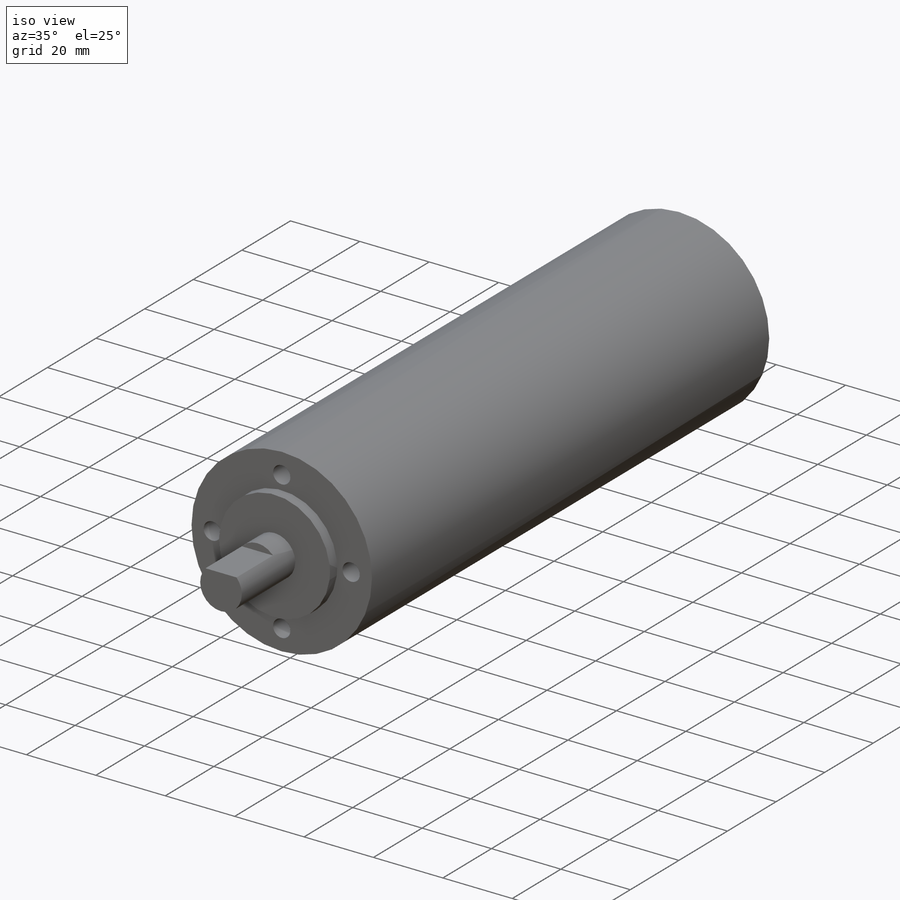
[diagram: iso view]
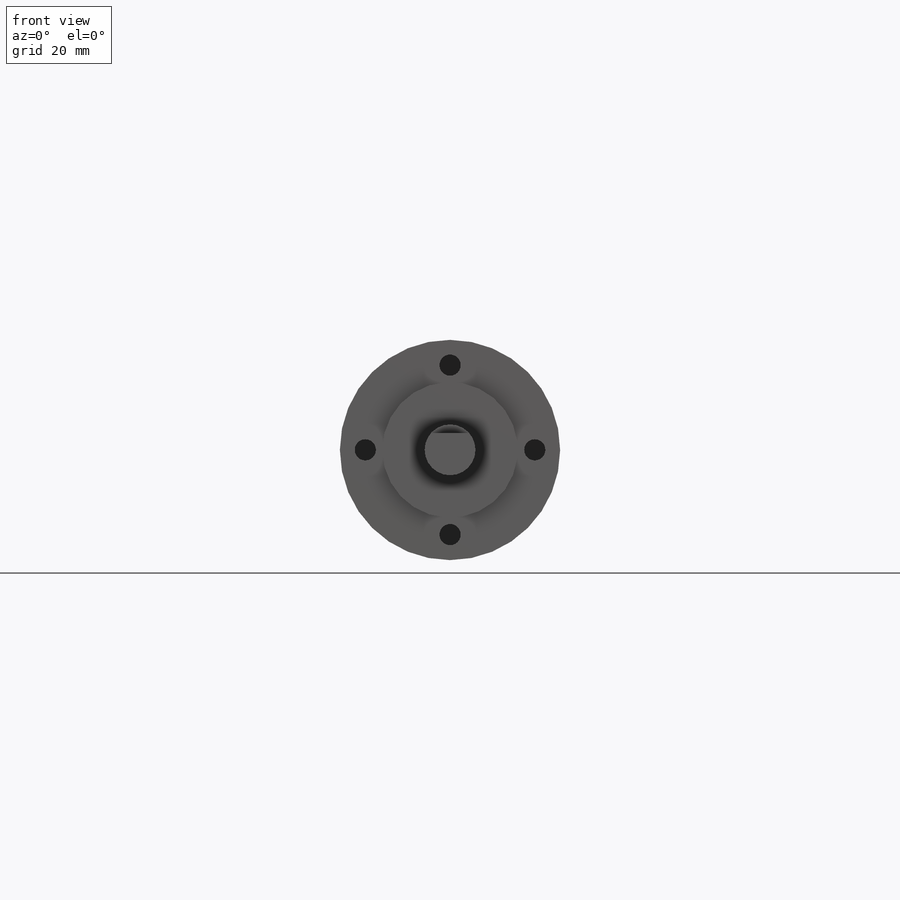
[diagram: front view]
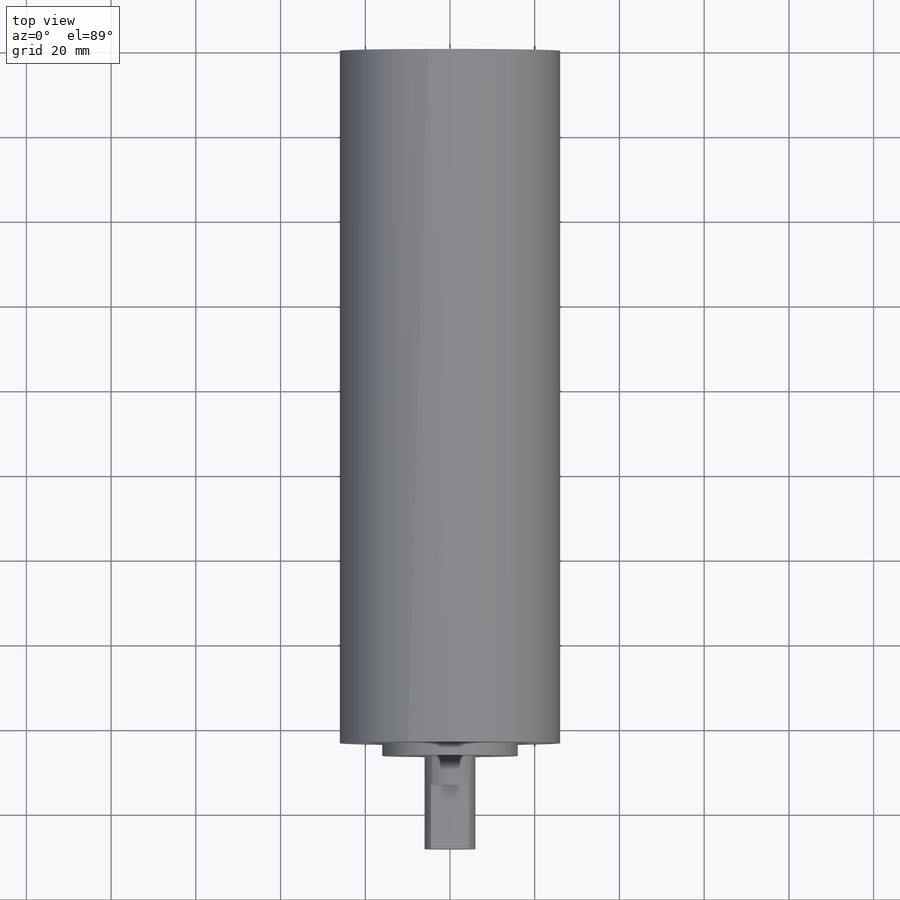
[diagram: top view]
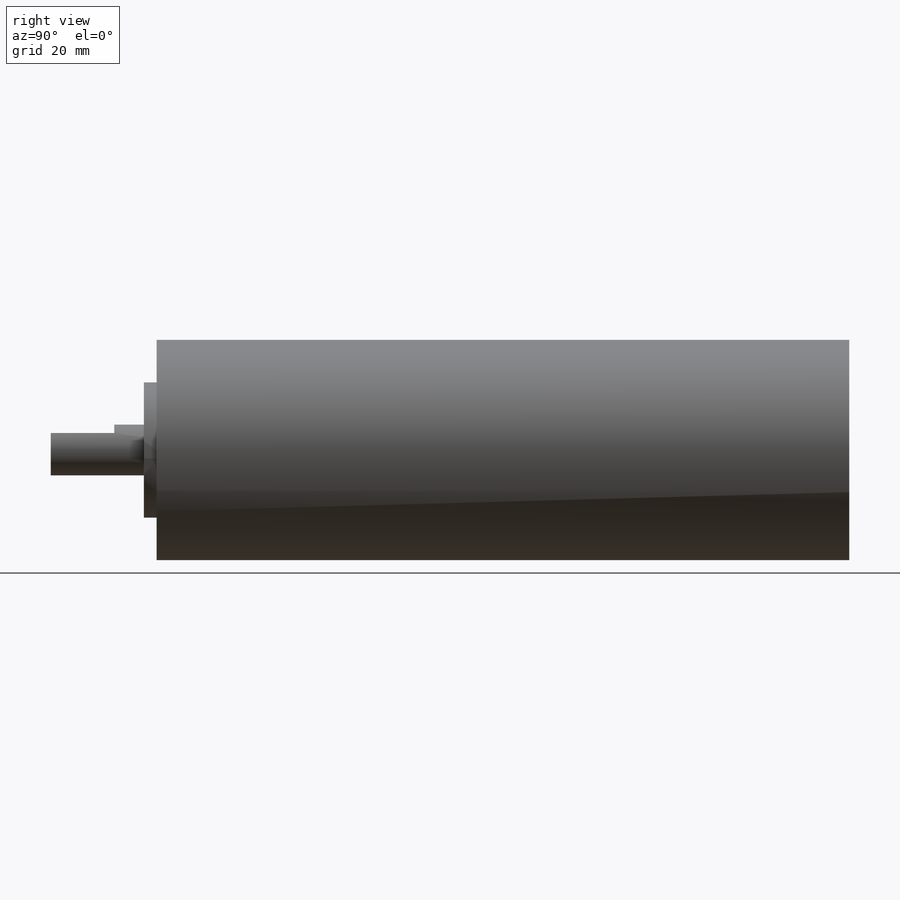
[diagram: right view]
SOLIDWORKS PART (.sldprt)
format: sldprt  version: not decoded by parser v0  size: 203,776 bytes
history: native  units: mm
features: sketch x5, extrude x3, cut_extrude x2, material x1 (+12 scaffold rows collapsed)
feature tree (23):
  scaffold x12  (default folders/planes/origin — collapsed)
  material  "Material <not specified>"
  sketch  "Sketch1"  dims[D1=52.0mm]
  extrude  "Boss-Extrude1"  Depth=163.5mm
  sketch  "Sketch2"  dims[D1=32.0mm]
  extrude  "Boss-Extrude2"  Depth=3mm
  sketch  "Sketch3"  dims[D1=12.0mm]
  extrude  "Boss-Extrude3"  Depth=22mm
  sketch  "Sketch4"  dims[D1=10.0mm]
  cut_extrude  "Cut-Extrude1"  Depth=15mm
  sketch  "Sketch6"  dims[D2=5.0mm D1=20.0mm D3=4.0]
  cut_extrude  "Cut-Extrude2"  Depth=10mm
decode coverage: 10 of 10 modeling features carry decoded parameters
note: suppression state not decoded; provenance and decode notes live in map.json
